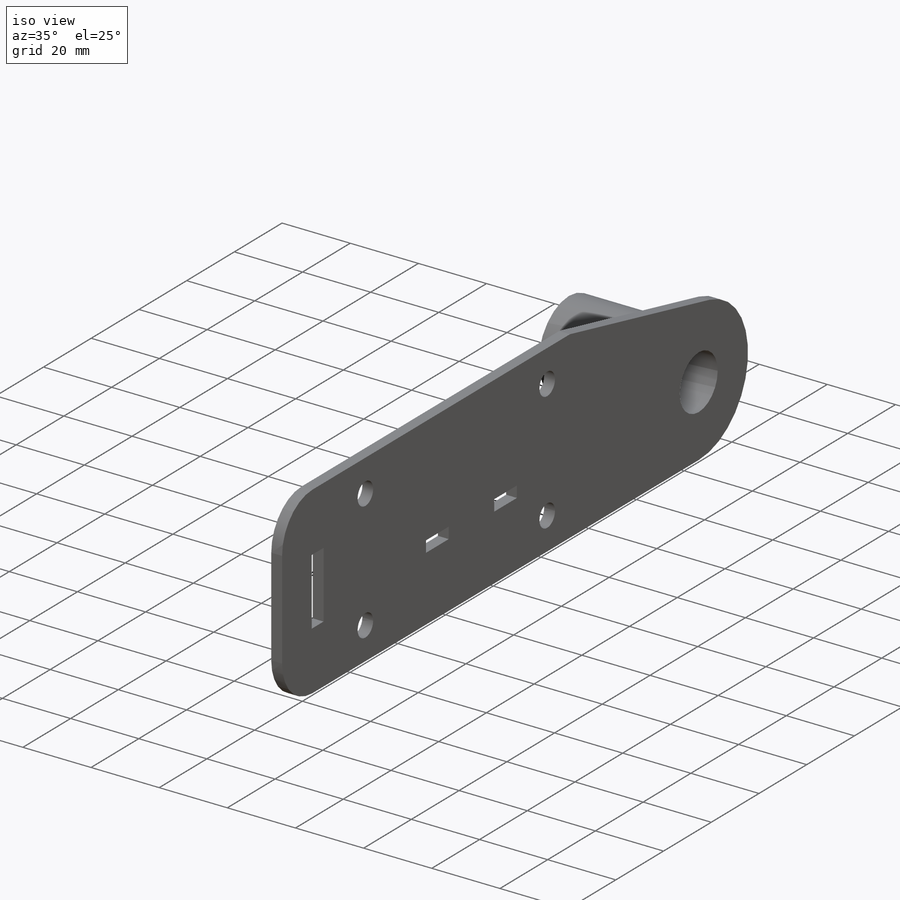
[diagram: iso view]
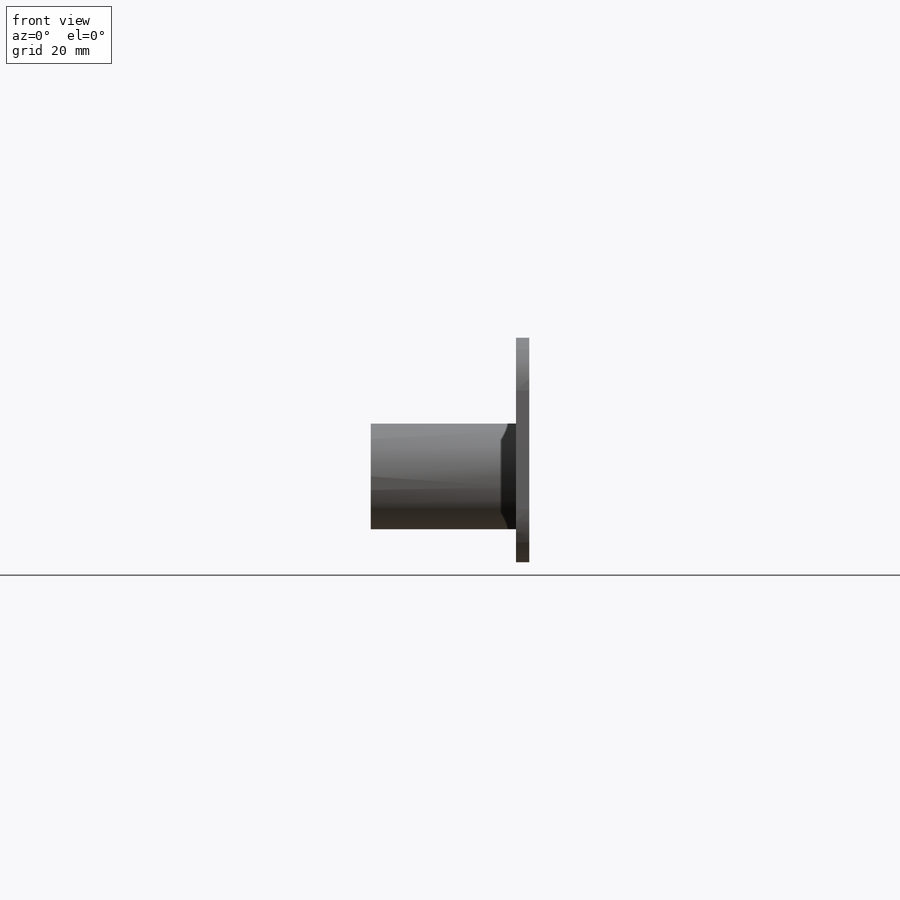
[diagram: front view]
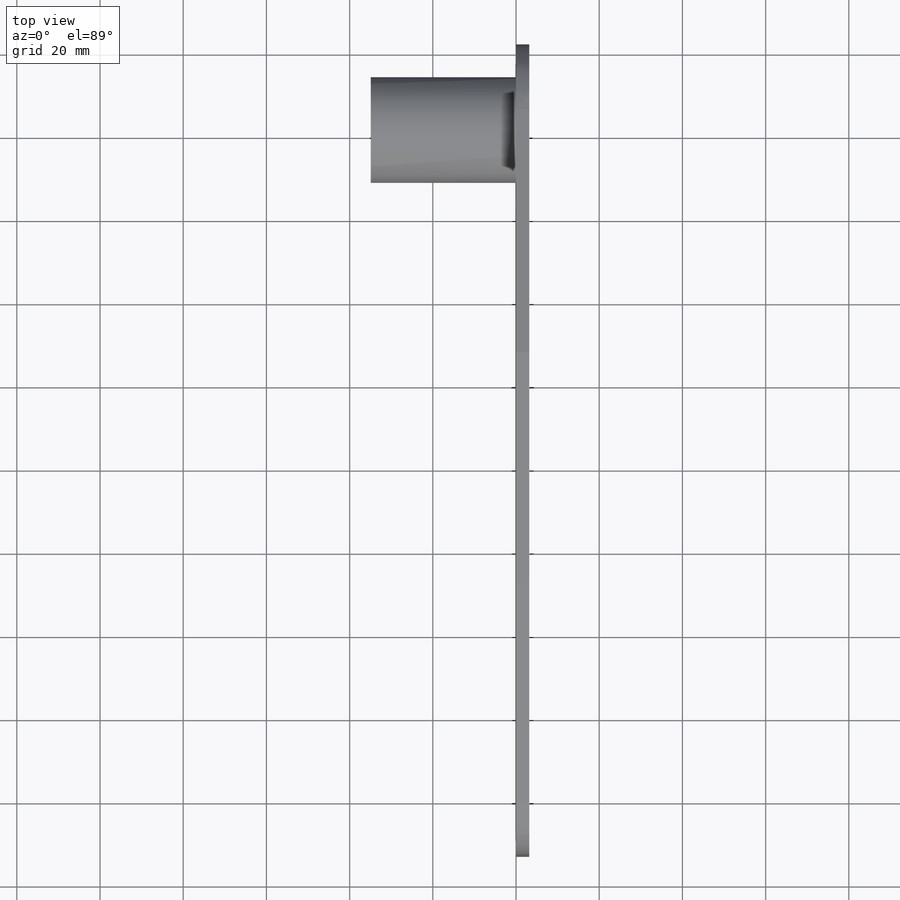
[diagram: top view]
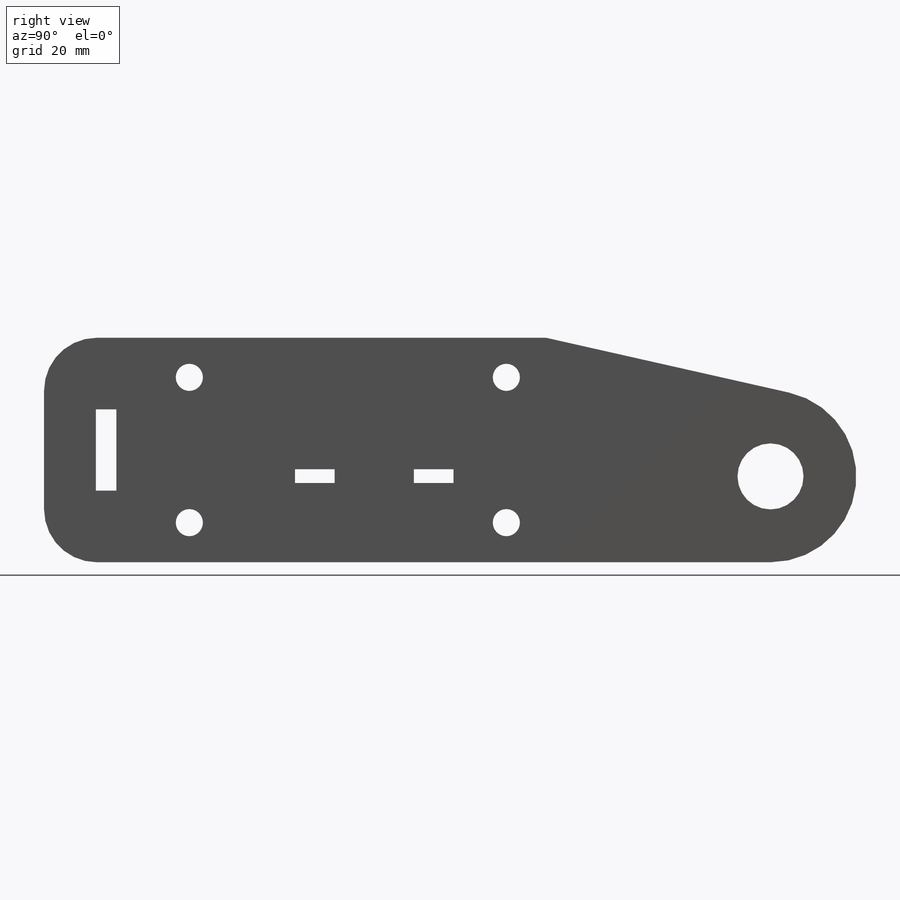
[diagram: right view]
SOLIDWORKS PART (.sldprt)
format: sldprt  version: not decoded by parser v0  size: 242,176 bytes
history: native  units: mm
features: sketch x4, extrude x3, material x1, cut_extrude x1 (+13 scaffold rows collapsed)
feature tree (22):
  scaffold x13  (default folders/planes/origin — collapsed)
  material  "Plain Carbon Steel"
  sketch  "Sketch1"  dims[c1.D3=6.5278mm c1.D4=25.4mm c1.D7=~50.215268mm c1.D1=~32.178251mm c1.D2=~108.911004mm c2.D1=76.2mm c2.D2=34.925mm c2.D5=63.5mm c2.D6=6.35mm c2.D7=12.7mm c2.D8=~62.079726mm c2.D9=~98.959537mm c3.D8=9.525mm c3.D9=9.525mm c3.D10=~46.763628mm c3.D7=~0.730346mm]
  extrude  "Boss-Extrude1"  Depth=3.175mm
  sketch  "Sketch2"  dims[D1=4.7625mm]
  extrude  "Boss-Extrude2"  Depth=34.925mm
  sketch  "Sketch4"  dims[c1.D6=12.7mm c1.D1=25.4mm c1.D2=19.558mm c1.D3=4.953mm c1.D4=17.2085mm c1.D5=19.558mm c2.D5=90.0deg c3.D5=8.001mm]
  extrude  "Boss-Extrude3"  [1 undecoded]
  sketch  "Sketch5"  dims[D1=3.302mm D2=1.5875mm D3=9.525mm D4=76.2mm D5=9.525mm D6=19.05mm D7=3.302mm]
  cut_extrude  "Cut-Extrude1"  [1 undecoded]
decode coverage: 6 of 8 modeling features carry decoded parameters
note: ~ marks probable driven/reference dimensions
note: 2 parameter values undecoded
note: suppression state not decoded; provenance and decode notes live in map.json
